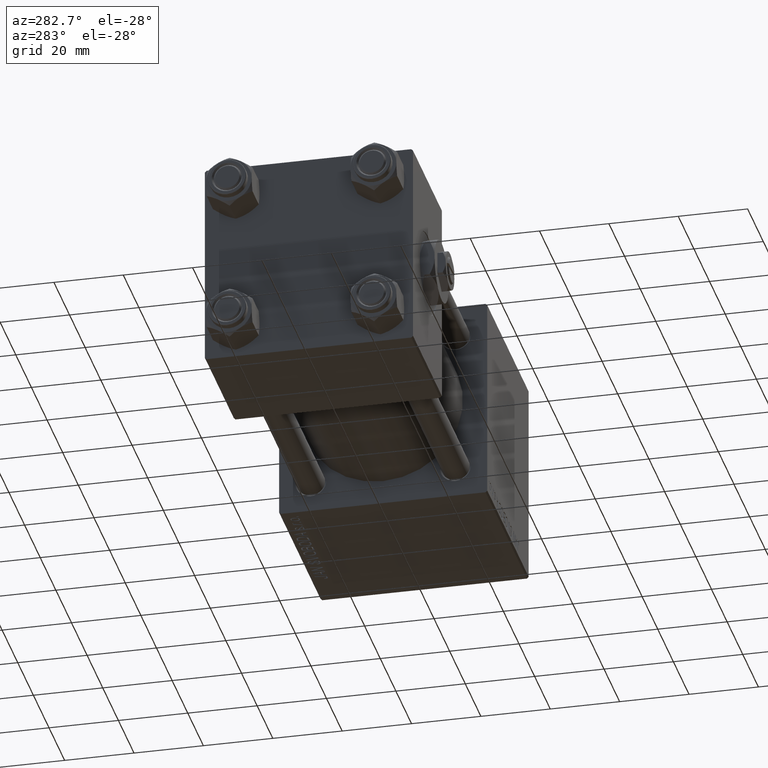
[diagram: clean part render]
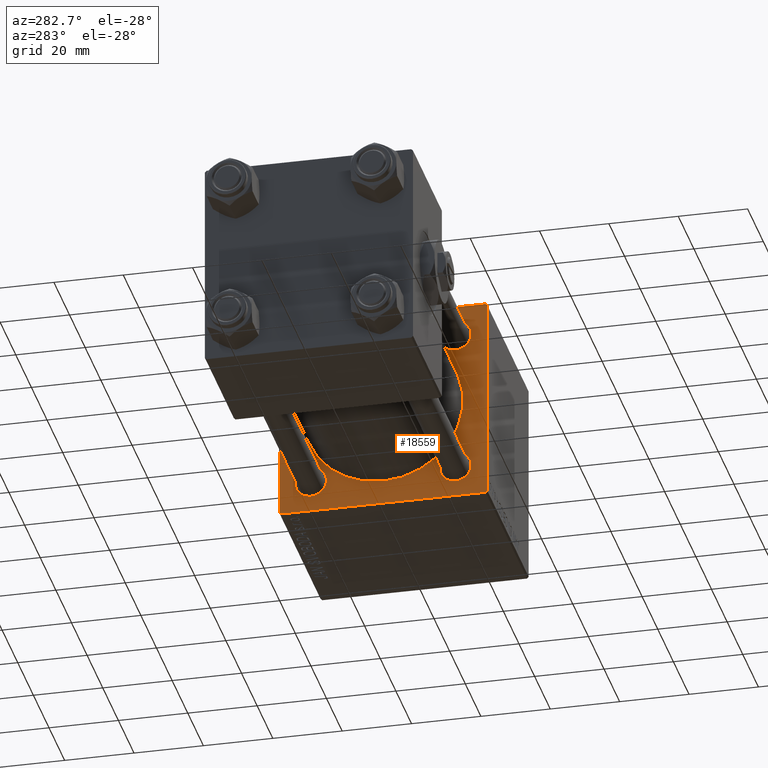
[diagram: same view with one face highlighted and labeled with its STEP entity id]
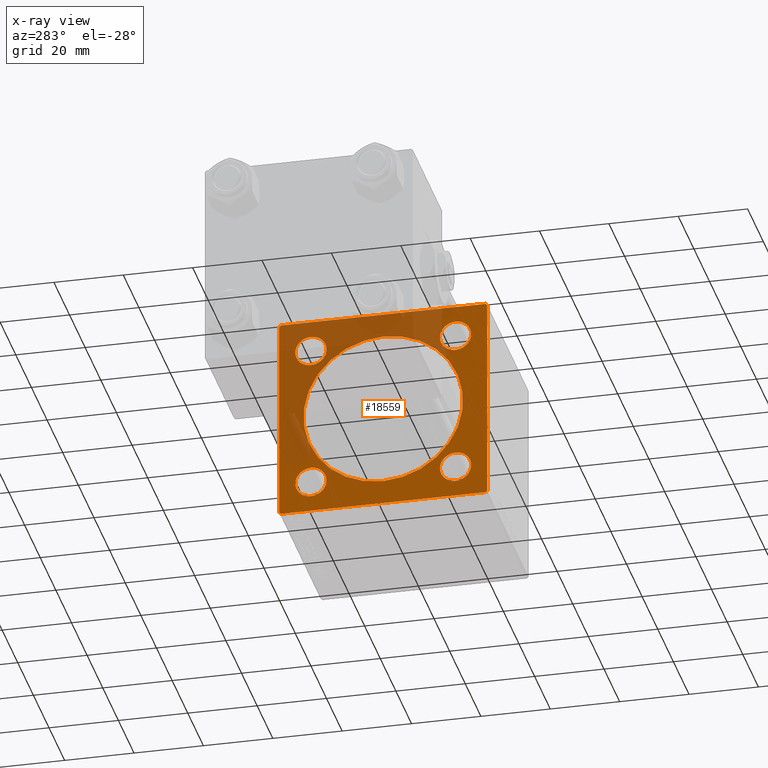
[diagram: x-ray of the same camera — body ghosted, the highlighted face saturated]
A machine part, auxiliary view. The second image highlights one B-rep face of the part: STEP entity #18559.
The next image is the same camera in x-ray: the body ghosted, the highlighted face saturated — about 41% of this face is hidden behind the body in this view.
In plain terms, the highlighted planar face has unit normal (-1, 0, 0).
Its self-contained STEP definition (entity closure, byte-faithful):
#681 = EDGE_CURVE ( 'NONE', #9371, #5248, #30440, .T. ) ;
#748 = DIRECTION ( 'NONE',  ( -1.000000000000000000, 0.000000000000000000, -0.000000000000000000 ) ) ;
#923 = CIRCLE ( 'NONE', #3493, 23.00000000000000000 ) ;
#999 = LINE ( 'NONE', #45359, #46579 ) ;
#1768 = FACE_OUTER_BOUND ( 'NONE', #31422, .T. ) ;
#1973 = EDGE_CURVE ( 'NONE', #10568, #29051, #44802, .T. ) ;
#2618 = CARTESIAN_POINT ( 'NONE',  ( 95.00000000000000000, -29.50000000000000000, 29.99999999999999289 ) ) ;
#2657 = ORIENTED_EDGE ( 'NONE', *, *, #28815, .T. ) ;
#3209 = VERTEX_POINT ( 'NONE', #9838 ) ;
#3259 = CARTESIAN_POINT ( 'NONE',  ( 95.00000000000000000, -2.602085213965210642E-15, 0.000000000000000000 ) ) ;
#3493 = AXIS2_PLACEMENT_3D ( 'NONE', #24441, #4476, #44885 ) ;
#3545 = LINE ( 'NONE', #47382, #10584 ) ;
#3664 = CARTESIAN_POINT ( 'NONE',  ( 95.00000000000000000, 20.84999999999999787, 25.35000000000000853 ) ) ;
#4476 = DIRECTION ( 'NONE',  ( 1.000000000000000000, 0.000000000000000000, 0.000000000000000000 ) ) ;
#5153 = AXIS2_PLACEMENT_3D ( 'NONE', #17243, #49551, #36457 ) ;
#5235 = VERTEX_POINT ( 'NONE', #48277 ) ;
#5248 = VERTEX_POINT ( 'NONE', #3664 ) ;
#5453 = DIRECTION ( 'NONE',  ( 0.000000000000000000, 0.7071067811865474617, -0.7071067811865474617 ) ) ;
#5627 = DIRECTION ( 'NONE',  ( 0.000000000000000000, 0.000000000000000000, 1.000000000000000000 ) ) ;
#5672 = ORIENTED_EDGE ( 'NONE', *, *, #43588, .T. ) ;
#6107 = EDGE_CURVE ( 'NONE', #39213, #47330, #43900, .T. ) ;
#6168 = AXIS2_PLACEMENT_3D ( 'NONE', #17778, #748, #16993 ) ;
#6404 = LINE ( 'NONE', #14530, #44955 ) ;
#6520 = CARTESIAN_POINT ( 'NONE',  ( 95.00000000000000000, -2.602085213965210642E-15, 23.00000000000000000 ) ) ;
#6924 = DIRECTION ( 'NONE',  ( 0.000000000000000000, -1.000000000000000000, -1.156482317317871478E-16 ) ) ;
#7783 = DIRECTION ( 'NONE',  ( -0.000000000000000000, -0.7071067811865474617, -0.7071067811865474617 ) ) ;
#8239 = VERTEX_POINT ( 'NONE', #46638 ) ;
#8450 = CARTESIAN_POINT ( 'NONE',  ( 95.00000000000000000, -20.84999999999999076, 20.85000000000000497 ) ) ;
#8680 = VECTOR ( 'NONE', #39470, 1000.000000000000114 ) ;
#8953 = DIRECTION ( 'NONE',  ( 1.000000000000000000, -0.000000000000000000, 0.000000000000000000 ) ) ;
#9054 = CARTESIAN_POINT ( 'NONE',  ( 95.00000000000000000, 20.84999999999999787, 16.34999999999999432 ) ) ;
#9283 = AXIS2_PLACEMENT_3D ( 'NONE', #50138, #13369, #25464 ) ;
#9371 = VERTEX_POINT ( 'NONE', #9054 ) ;
#9783 = EDGE_CURVE ( 'NONE', #38652, #50211, #21410, .T. ) ;
#9838 = CARTESIAN_POINT ( 'NONE',  ( 95.00000000000000000, 20.84999999999999787, -25.35000000000000853 ) ) ;
#10172 = CARTESIAN_POINT ( 'NONE',  ( 95.00000000000000000, 30.00000000000000000, 30.00000000000000000 ) ) ;
#10568 = VERTEX_POINT ( 'NONE', #15981 ) ;
#10584 = VECTOR ( 'NONE', #35578, 1000.000000000000000 ) ;
#10751 = EDGE_CURVE ( 'NONE', #8239, #27293, #999, .T. ) ;
#13175 = VECTOR ( 'NONE', #7783, 1000.000000000000114 ) ;
#13263 = DIRECTION ( 'NONE',  ( 0.000000000000000000, 0.000000000000000000, -1.000000000000000000 ) ) ;
#13369 = DIRECTION ( 'NONE',  ( 1.000000000000000000, -0.000000000000000000, 0.000000000000000000 ) ) ;
#13841 = PLANE ( 'NONE',  #6168 ) ;
#14481 = VERTEX_POINT ( 'NONE', #19952 ) ;
#14530 = CARTESIAN_POINT ( 'NONE',  ( 95.00000000000000000, 30.00000000000000000, -29.99999999999999289 ) ) ;
#14695 = DIRECTION ( 'NONE',  ( 0.000000000000000000, 0.000000000000000000, 1.000000000000000000 ) ) ;
#14720 = ORIENTED_EDGE ( 'NONE', *, *, #10751, .T. ) ;
#15023 = ORIENTED_EDGE ( 'NONE', *, *, #40104, .F. ) ;
#15632 = CIRCLE ( 'NONE', #45795, 4.500000000000007105 ) ;
#15981 = CARTESIAN_POINT ( 'NONE',  ( 95.00000000000000000, -30.00000000000000000, 29.49999999999999289 ) ) ;
#16453 = ORIENTED_EDGE ( 'NONE', *, *, #1973, .T. ) ;
#16858 = VERTEX_POINT ( 'NONE', #45531 ) ;
#16993 = DIRECTION ( 'NONE',  ( -0.000000000000000000, 0.000000000000000000, 1.000000000000000000 ) ) ;
#17243 = CARTESIAN_POINT ( 'NONE',  ( 95.00000000000000000, 20.84999999999999787, 20.85000000000000142 ) ) ;
#17370 = DIRECTION ( 'NONE',  ( 0.000000000000000000, 0.000000000000000000, 1.000000000000000000 ) ) ;
#17778 = CARTESIAN_POINT ( 'NONE',  ( 95.00000000000000000, 0.000000000000000000, 0.000000000000000000 ) ) ;
#17978 = DIRECTION ( 'NONE',  ( 0.000000000000000000, 0.000000000000000000, 1.000000000000000000 ) ) ;
#18034 = AXIS2_PLACEMENT_3D ( 'NONE', #34203, #42325, #17370 ) ;
#18481 = ORIENTED_EDGE ( 'NONE', *, *, #6107, .T. ) ;
#18559 = ADVANCED_FACE ( 'NONE', ( #45094, #37763, #44584, #20949, #40665, #1768 ), #13841, .T. ) ;
#18598 = CARTESIAN_POINT ( 'NONE',  ( 95.00000000000000000, 2.146024240737012665E-16, -23.00000000000000000 ) ) ;
#19239 = ORIENTED_EDGE ( 'NONE', *, *, #28014, .T. ) ;
#19286 = CARTESIAN_POINT ( 'NONE',  ( 95.00000000000000000, 30.00000000000000000, 29.50000000000000000 ) ) ;
#19403 = EDGE_LOOP ( 'NONE', ( #40084, #28361 ) ) ;
#19479 = VECTOR ( 'NONE', #29571, 1000.000000000000114 ) ;
#19952 = CARTESIAN_POINT ( 'NONE',  ( 95.00000000000000000, 29.50000000000000000, -29.99999999999999289 ) ) ;
#20889 = LINE ( 'NONE', #48716, #21529 ) ;
#20949 = FACE_BOUND ( 'NONE', #32539, .T. ) ;
#21410 = CIRCLE ( 'NONE', #18034, 4.500000000000007105 ) ;
#21529 = VECTOR ( 'NONE', #13263, 1000.000000000000000 ) ;
#22494 = EDGE_LOOP ( 'NONE', ( #24995, #33436 ) ) ;
#22689 = AXIS2_PLACEMENT_3D ( 'NONE', #46055, #26910, #5627 ) ;
#22751 = ORIENTED_EDGE ( 'NONE', *, *, #9783, .T. ) ;
#23186 = CARTESIAN_POINT ( 'NONE',  ( 95.00000000000000000, -29.74999999999999645, -29.74999999999999645 ) ) ;
#23570 = EDGE_CURVE ( 'NONE', #50211, #38652, #43228, .T. ) ;
#23977 = DIRECTION ( 'NONE',  ( 1.000000000000000000, 0.000000000000000000, 0.000000000000000000 ) ) ;
#24441 = CARTESIAN_POINT ( 'NONE',  ( 95.00000000000000000, -2.602085213965210642E-15, 0.000000000000000000 ) ) ;
#24995 = ORIENTED_EDGE ( 'NONE', *, *, #26596, .T. ) ;
#25196 = ORIENTED_EDGE ( 'NONE', *, *, #25937, .T. ) ;
#25464 = DIRECTION ( 'NONE',  ( 0.000000000000000000, 0.000000000000000000, 1.000000000000000000 ) ) ;
#25895 = CARTESIAN_POINT ( 'NONE',  ( 95.00000000000000000, 20.84999999999999787, 20.85000000000000142 ) ) ;
#25937 = EDGE_CURVE ( 'NONE', #5235, #40714, #15632, .T. ) ;
#26596 = EDGE_CURVE ( 'NONE', #5248, #9371, #41684, .T. ) ;
#26910 = DIRECTION ( 'NONE',  ( 1.000000000000000000, -0.000000000000000000, 0.000000000000000000 ) ) ;
#27293 = VERTEX_POINT ( 'NONE', #19286 ) ;
#28014 = EDGE_CURVE ( 'NONE', #27293, #36364, #3545, .T. ) ;
#28361 = ORIENTED_EDGE ( 'NONE', *, *, #40648, .T. ) ;
#28815 = EDGE_CURVE ( 'NONE', #14481, #39213, #6404, .T. ) ;
#29043 = CIRCLE ( 'NONE', #50837, 4.500000000000007105 ) ;
#29051 = VERTEX_POINT ( 'NONE', #2618 ) ;
#29071 = DIRECTION ( 'NONE',  ( 0.000000000000000000, -1.000000000000000000, -1.156482317317871478E-16 ) ) ;
#29346 = EDGE_CURVE ( 'NONE', #40714, #5235, #29043, .T. ) ;
#29571 = DIRECTION ( 'NONE',  ( -0.000000000000000000, 0.7071067811865474617, 0.7071067811865474617 ) ) ;
#30440 = CIRCLE ( 'NONE', #5153, 4.500000000000007105 ) ;
#30584 = VERTEX_POINT ( 'NONE', #18598 ) ;
#31422 = EDGE_LOOP ( 'NONE', ( #2657, #18481, #41353, #16453, #15023, #14720, #19239, #5672 ) ) ;
#31492 = CARTESIAN_POINT ( 'NONE',  ( 95.00000000000000000, -20.84999999999999076, 20.85000000000000497 ) ) ;
#31591 = CARTESIAN_POINT ( 'NONE',  ( 95.00000000000000000, 30.00000000000000000, -29.49999999999997868 ) ) ;
#31790 = CARTESIAN_POINT ( 'NONE',  ( 95.00000000000000000, -20.84999999999999076, -25.35000000000001208 ) ) ;
#31913 = ORIENTED_EDGE ( 'NONE', *, *, #23570, .T. ) ;
#32172 = ORIENTED_EDGE ( 'NONE', *, *, #39724, .T. ) ;
#32539 = EDGE_LOOP ( 'NONE', ( #31913, #22751 ) ) ;
#32969 = DIRECTION ( 'NONE',  ( 1.000000000000000000, -0.000000000000000000, 0.000000000000000000 ) ) ;
#33072 = EDGE_LOOP ( 'NONE', ( #32172, #36883 ) ) ;
#33436 = ORIENTED_EDGE ( 'NONE', *, *, #681, .T. ) ;
#34203 = CARTESIAN_POINT ( 'NONE',  ( 95.00000000000000000, -20.84999999999999076, -20.85000000000000497 ) ) ;
#34748 = CARTESIAN_POINT ( 'NONE',  ( 95.00000000000000000, -20.84999999999999076, -20.85000000000000497 ) ) ;
#34877 = CARTESIAN_POINT ( 'NONE',  ( 95.00000000000000000, -30.00000000000000000, -29.49999999999998579 ) ) ;
#35371 = LINE ( 'NONE', #47935, #13175 ) ;
#35522 = DIRECTION ( 'NONE',  ( 1.000000000000000000, -0.000000000000000000, 0.000000000000000000 ) ) ;
#35578 = DIRECTION ( 'NONE',  ( 0.000000000000000000, 0.000000000000000000, -1.000000000000000000 ) ) ;
#36364 = VERTEX_POINT ( 'NONE', #31591 ) ;
#36457 = DIRECTION ( 'NONE',  ( 0.000000000000000000, 0.000000000000000000, 1.000000000000000000 ) ) ;
#36883 = ORIENTED_EDGE ( 'NONE', *, *, #39225, .T. ) ;
#37763 = FACE_BOUND ( 'NONE', #22494, .T. ) ;
#38003 = LINE ( 'NONE', #10172, #42851 ) ;
#38652 = VERTEX_POINT ( 'NONE', #31790 ) ;
#38664 = AXIS2_PLACEMENT_3D ( 'NONE', #3259, #23977, #40005 ) ;
#38954 = DIRECTION ( 'NONE',  ( 0.000000000000000000, 0.000000000000000000, 1.000000000000000000 ) ) ;
#39213 = VERTEX_POINT ( 'NONE', #50522 ) ;
#39225 = EDGE_CURVE ( 'NONE', #3209, #16858, #45290, .T. ) ;
#39279 = EDGE_CURVE ( 'NONE', #49790, #30584, #43666, .T. ) ;
#39470 = DIRECTION ( 'NONE',  ( 0.000000000000000000, -0.7071067811865474617, 0.7071067811865474617 ) ) ;
#39724 = EDGE_CURVE ( 'NONE', #16858, #3209, #41154, .T. ) ;
#40005 = DIRECTION ( 'NONE',  ( 0.000000000000000000, 0.000000000000000000, -1.000000000000000000 ) ) ;
#40084 = ORIENTED_EDGE ( 'NONE', *, *, #39279, .T. ) ;
#40104 = EDGE_CURVE ( 'NONE', #8239, #29051, #38003, .T. ) ;
#40429 = EDGE_LOOP ( 'NONE', ( #44187, #25196 ) ) ;
#40633 = CARTESIAN_POINT ( 'NONE',  ( 95.00000000000000000, -29.74999999999999645, 29.74999999999999645 ) ) ;
#40648 = EDGE_CURVE ( 'NONE', #30584, #49790, #923, .T. ) ;
#40665 = FACE_BOUND ( 'NONE', #19403, .T. ) ;
#40714 = VERTEX_POINT ( 'NONE', #44824 ) ;
#41001 = DIRECTION ( 'NONE',  ( 0.000000000000000000, 0.000000000000000000, 1.000000000000000000 ) ) ;
#41154 = CIRCLE ( 'NONE', #9283, 4.500000000000007105 ) ;
#41353 = ORIENTED_EDGE ( 'NONE', *, *, #46623, .F. ) ;
#41684 = CIRCLE ( 'NONE', #45836, 4.500000000000007105 ) ;
#42325 = DIRECTION ( 'NONE',  ( 1.000000000000000000, -0.000000000000000000, 0.000000000000000000 ) ) ;
#42851 = VECTOR ( 'NONE', #29071, 1000.000000000000000 ) ;
#43051 = DIRECTION ( 'NONE',  ( 1.000000000000000000, -0.000000000000000000, 0.000000000000000000 ) ) ;
#43228 = CIRCLE ( 'NONE', #44075, 4.500000000000007105 ) ;
#43588 = EDGE_CURVE ( 'NONE', #36364, #14481, #35371, .T. ) ;
#43666 = CIRCLE ( 'NONE', #38664, 23.00000000000000000 ) ;
#43900 = LINE ( 'NONE', #23186, #8680 ) ;
#43952 = CARTESIAN_POINT ( 'NONE',  ( 95.00000000000000000, -20.84999999999999076, -16.34999999999999787 ) ) ;
#44075 = AXIS2_PLACEMENT_3D ( 'NONE', #34748, #35522, #38954 ) ;
#44187 = ORIENTED_EDGE ( 'NONE', *, *, #29346, .T. ) ;
#44584 = FACE_BOUND ( 'NONE', #33072, .T. ) ;
#44802 = LINE ( 'NONE', #40633, #19479 ) ;
#44824 = CARTESIAN_POINT ( 'NONE',  ( 95.00000000000000000, -20.84999999999999076, 25.35000000000001208 ) ) ;
#44885 = DIRECTION ( 'NONE',  ( 0.000000000000000000, 0.000000000000000000, -1.000000000000000000 ) ) ;
#44955 = VECTOR ( 'NONE', #6924, 1000.000000000000000 ) ;
#45094 = FACE_BOUND ( 'NONE', #40429, .T. ) ;
#45290 = CIRCLE ( 'NONE', #22689, 4.500000000000007105 ) ;
#45359 = CARTESIAN_POINT ( 'NONE',  ( 95.00000000000000000, 29.74999999999999645, 29.74999999999999645 ) ) ;
#45531 = CARTESIAN_POINT ( 'NONE',  ( 95.00000000000000000, 20.84999999999999787, -16.34999999999999432 ) ) ;
#45795 = AXIS2_PLACEMENT_3D ( 'NONE', #31492, #43051, #14695 ) ;
#45836 = AXIS2_PLACEMENT_3D ( 'NONE', #25895, #32969, #17978 ) ;
#46055 = CARTESIAN_POINT ( 'NONE',  ( 95.00000000000000000, 20.84999999999999787, -20.85000000000000142 ) ) ;
#46579 = VECTOR ( 'NONE', #5453, 1000.000000000000114 ) ;
#46623 = EDGE_CURVE ( 'NONE', #10568, #47330, #20889, .T. ) ;
#46638 = CARTESIAN_POINT ( 'NONE',  ( 95.00000000000000000, 29.50000000000000000, 30.00000000000000000 ) ) ;
#47330 = VERTEX_POINT ( 'NONE', #34877 ) ;
#47382 = CARTESIAN_POINT ( 'NONE',  ( 95.00000000000000000, 30.00000000000000000, 30.00000000000000000 ) ) ;
#47935 = CARTESIAN_POINT ( 'NONE',  ( 95.00000000000000000, 29.74999999999999645, -29.74999999999999645 ) ) ;
#48277 = CARTESIAN_POINT ( 'NONE',  ( 95.00000000000000000, -20.84999999999999076, 16.34999999999999787 ) ) ;
#48716 = CARTESIAN_POINT ( 'NONE',  ( 95.00000000000000000, -30.00000000000000000, 29.99999999999999289 ) ) ;
#49551 = DIRECTION ( 'NONE',  ( 1.000000000000000000, -0.000000000000000000, 0.000000000000000000 ) ) ;
#49790 = VERTEX_POINT ( 'NONE', #6520 ) ;
#50138 = CARTESIAN_POINT ( 'NONE',  ( 95.00000000000000000, 20.84999999999999787, -20.85000000000000142 ) ) ;
#50211 = VERTEX_POINT ( 'NONE', #43952 ) ;
#50522 = CARTESIAN_POINT ( 'NONE',  ( 95.00000000000000000, -29.50000000000000000, -30.00000000000000000 ) ) ;
#50837 = AXIS2_PLACEMENT_3D ( 'NONE', #8450, #8953, #41001 ) ;